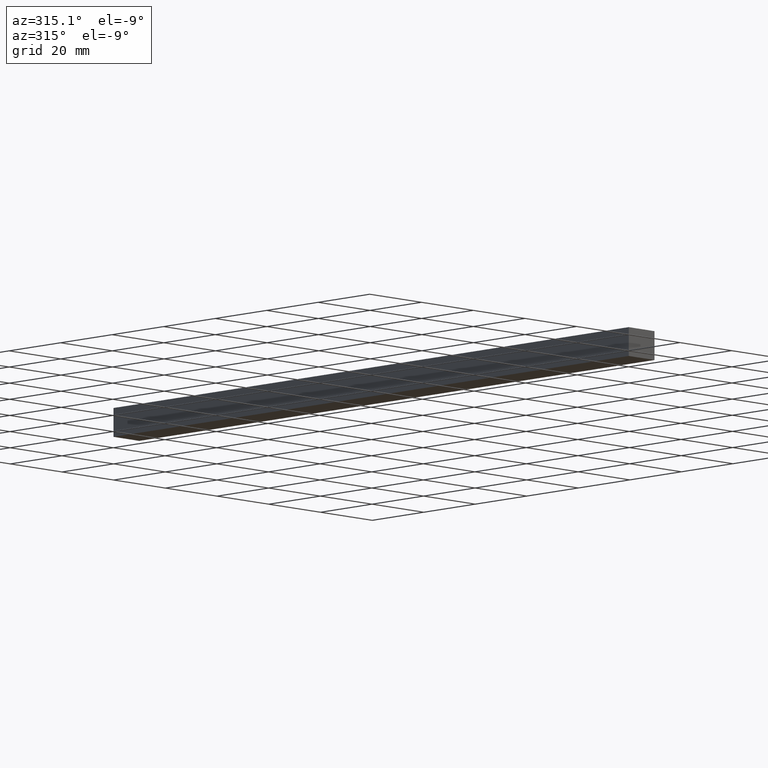
[diagram: clean part render]
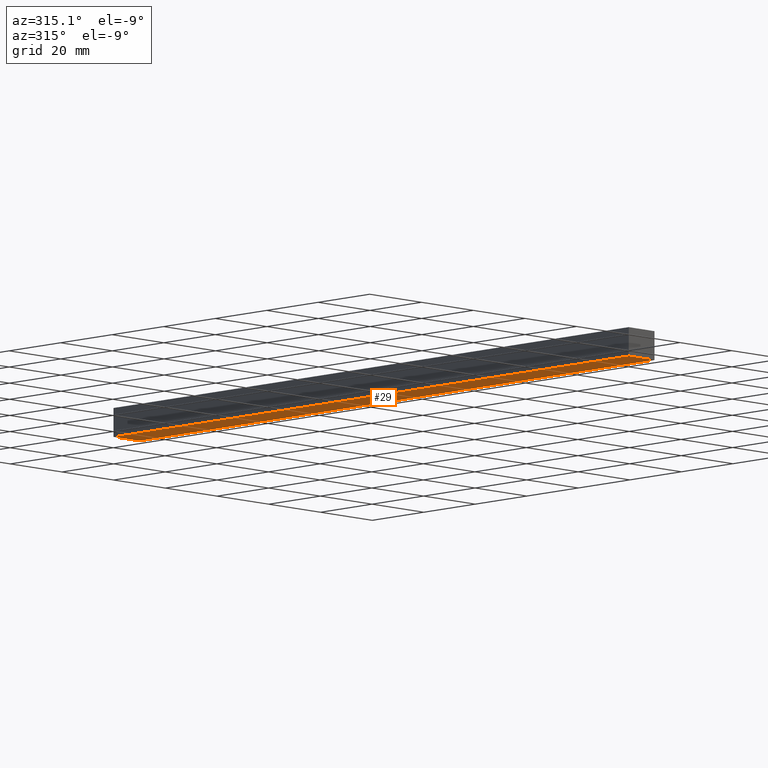
[diagram: same view with one face highlighted and labeled with its STEP entity id]
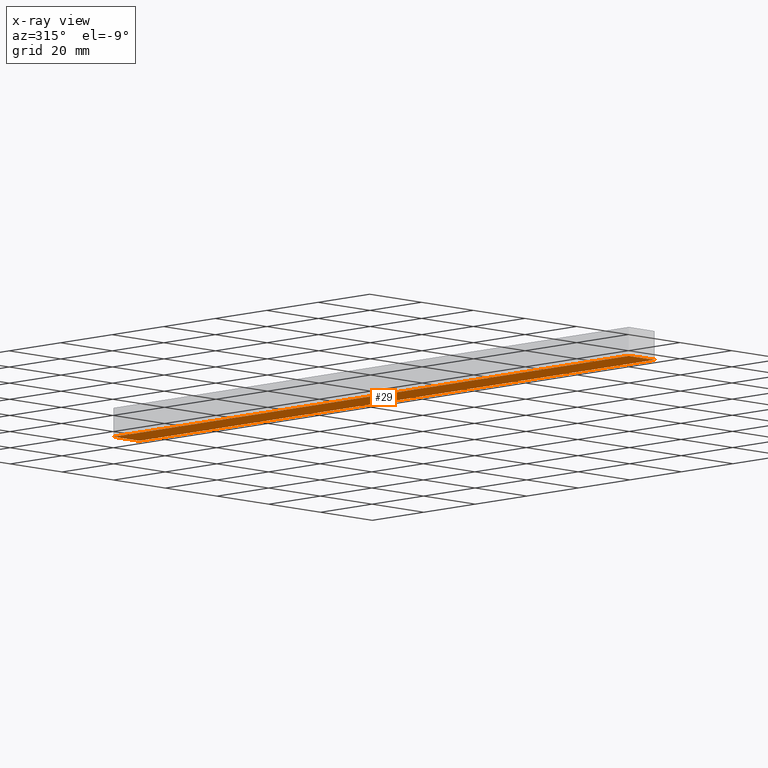
[diagram: x-ray of the same camera — body ghosted, the highlighted face saturated]
A machine part, auxiliary view. The second image highlights one B-rep face of the part: STEP entity #29.
The next image is the same camera in x-ray: the body ghosted, the highlighted face saturated — about 0% of this face is hidden behind the body in this view.
In plain terms, the highlighted planar face has unit normal (0, 0, -1).
Its self-contained STEP definition (entity closure, byte-faithful):
#1 = LINE ( 'NONE', #70, #208 ) ;
#6 = LINE ( 'NONE', #137, #202 ) ;
#11 = CARTESIAN_POINT ( 'NONE',  ( 0.0000000000000000000, 0.0000000000000000000, 0.0000000000000000000 ) ) ;
#14 = EDGE_CURVE ( 'NONE', #190, #72, #210, .T. ) ;
#16 = LINE ( 'NONE', #160, #207 ) ;
#17 = CARTESIAN_POINT ( 'NONE',  ( 0.0000000000000000000, 200.0000000000000000, 0.0000000000000000000 ) ) ;
#29 = ADVANCED_FACE ( 'NONE', ( #237 ), #172, .T. ) ;
#64 = EDGE_CURVE ( 'NONE', #143, #228, #6, .T. ) ;
#70 = CARTESIAN_POINT ( 'NONE',  ( 0.0000000000000000000, 1000.000000000000000, 0.0000000000000000000 ) ) ;
#72 = VERTEX_POINT ( 'NONE', #229 ) ;
#85 = DIRECTION ( 'NONE',  ( 0.0000000000000000000, -1.000000000000000000, 0.0000000000000000000 ) ) ;
#92 = VECTOR ( 'NONE', #114, 1000.000000000000000 ) ;
#94 = DIRECTION ( 'NONE',  ( 0.0000000000000000000, 0.0000000000000000000, -1.000000000000000000 ) ) ;
#96 = EDGE_CURVE ( 'NONE', #190, #143, #1, .T. ) ;
#109 = EDGE_LOOP ( 'NONE', ( #222, #197, #157, #185 ) ) ;
#114 = DIRECTION ( 'NONE',  ( 1.000000000000000000, -0.0000000000000000000, -0.0000000000000000000 ) ) ;
#121 = DIRECTION ( 'NONE',  ( 1.000000000000000000, -0.0000000000000000000, -0.0000000000000000000 ) ) ;
#131 = CARTESIAN_POINT ( 'NONE',  ( 0.0000000000000000000, 200.0000000000000000, 0.0000000000000000000 ) ) ;
#132 = AXIS2_PLACEMENT_3D ( 'NONE', #191, #94, #152 ) ;
#137 = CARTESIAN_POINT ( 'NONE',  ( 0.0000000000000000000, 0.0000000000000000000, 0.0000000000000000000 ) ) ;
#143 = VERTEX_POINT ( 'NONE', #11 ) ;
#152 = DIRECTION ( 'NONE',  ( -1.000000000000000000, 0.0000000000000000000, 0.0000000000000000000 ) ) ;
#157 = ORIENTED_EDGE ( 'NONE', *, *, #14, .T. ) ;
#160 = CARTESIAN_POINT ( 'NONE',  ( 10.00000000000000000, 1000.000000000000000, 0.0000000000000000000 ) ) ;
#172 = PLANE ( 'NONE',  #132 ) ;
#185 = ORIENTED_EDGE ( 'NONE', *, *, #238, .T. ) ;
#190 = VERTEX_POINT ( 'NONE', #17 ) ;
#191 = CARTESIAN_POINT ( 'NONE',  ( 0.0000000000000000000, 1000.000000000000000, 0.0000000000000000000 ) ) ;
#196 = CARTESIAN_POINT ( 'NONE',  ( 10.00000000000000000, 0.0000000000000000000, 0.0000000000000000000 ) ) ;
#197 = ORIENTED_EDGE ( 'NONE', *, *, #96, .F. ) ;
#202 = VECTOR ( 'NONE', #121, 1000.000000000000000 ) ;
#207 = VECTOR ( 'NONE', #213, 1000.000000000000000 ) ;
#208 = VECTOR ( 'NONE', #85, 1000.000000000000000 ) ;
#210 = LINE ( 'NONE', #131, #92 ) ;
#213 = DIRECTION ( 'NONE',  ( 0.0000000000000000000, -1.000000000000000000, 0.0000000000000000000 ) ) ;
#222 = ORIENTED_EDGE ( 'NONE', *, *, #64, .F. ) ;
#228 = VERTEX_POINT ( 'NONE', #196 ) ;
#229 = CARTESIAN_POINT ( 'NONE',  ( 10.00000000000000000, 200.0000000000000000, 0.0000000000000000000 ) ) ;
#237 = FACE_OUTER_BOUND ( 'NONE', #109, .T. ) ;
#238 = EDGE_CURVE ( 'NONE', #72, #228, #16, .T. ) ;